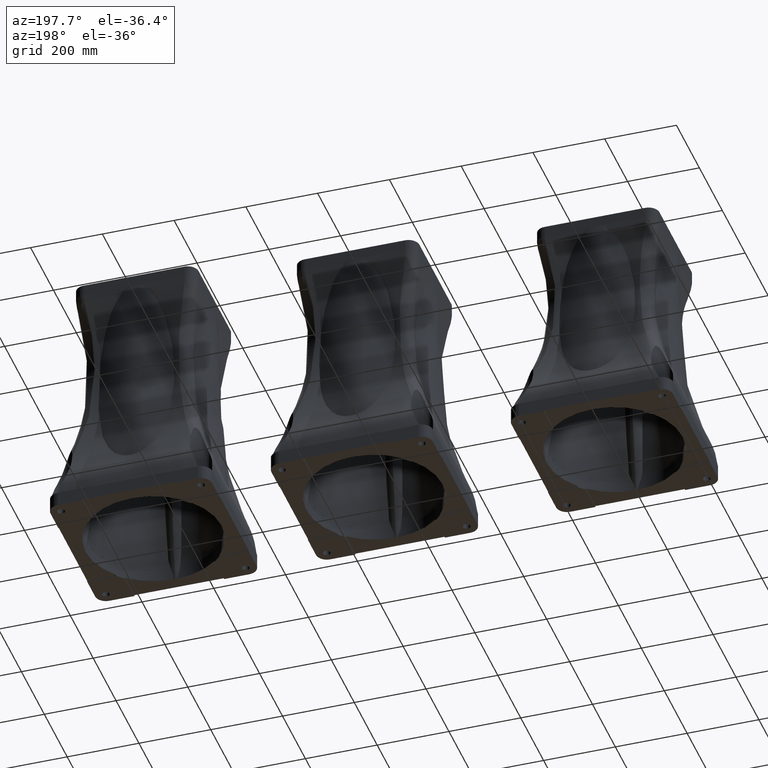
[diagram: clean part render]
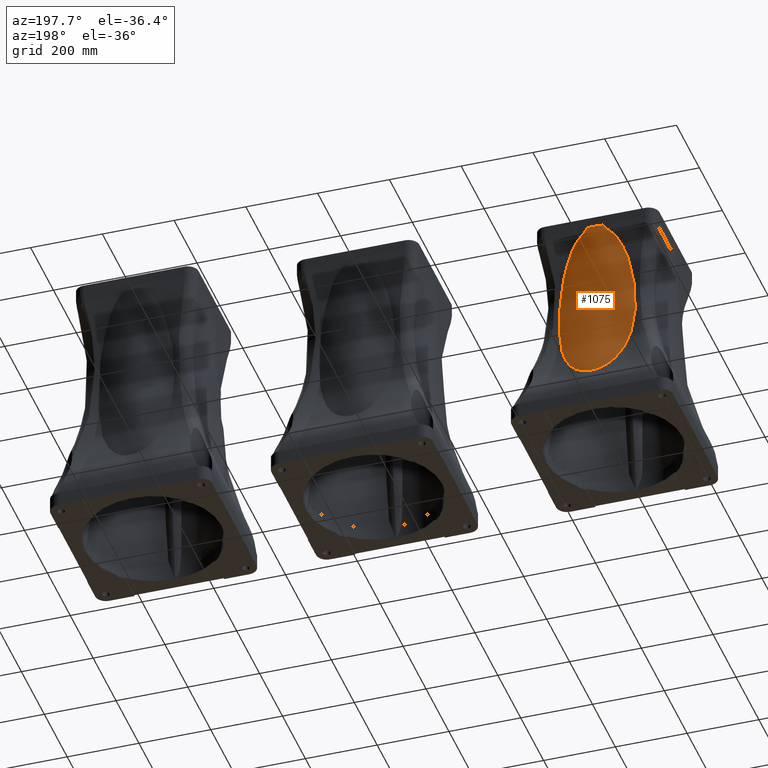
[diagram: same view with one face highlighted and labeled with its STEP entity id]
A machine part, auxiliary view. The second image highlights one B-rep face of the part: STEP entity #1075.
In plain terms, the highlighted face is a freeform B-spline surface patch.
Its self-contained STEP definition (entity closure, byte-faithful):
#1075=ADVANCED_FACE('',(#1801),#1802,.T.);
#1801=FACE_BOUND('',#3484,.T.);
#1802=(B_SPLINE_SURFACE(3,3,((#3486,#3487,#3488,#3489,#3490,#3491,#3492),(#3493,#3494,#3495,#3496,#3497,#3498,#3499),(#3500,#3501,#3502,#3503,#3504,#3505,#3506),(#3507,#3508,#3509,#3510,#3511,#3512,#3513),(#3514,#3515,#3516,#3517,#3518,#3519,#3520),(#3521,#3522,#3523,#3524,#3525,#3526,#3527),(#3528,#3529,#3530,#3531,#3532,#3533,#3534)),.UNSPECIFIED.,.T.,.T.,.F.)B_SPLINE_SURFACE_WITH_KNOTS((4,3,4),(4,3,4),(0.0,0.5,1.0),(0.0,0.5,1.0),.UNSPECIFIED.)RATIONAL_B_SPLINE_SURFACE(((1.0,0.333333333333334,0.333333333333334,1.0,0.333333333333334,0.333333333333334,1.0),(0.333333333333334,0.111111111111111,0.111111111111111,0.333333333333334,0.111111111111111,0.111111111111111,0.333333333333334),(0.333333333333334,0.111111111111111,0.111111111111111,0.333333333333334,0.111111111111111,0.111111111111111,0.333333333333334),(1.0,0.333333333333334,0.333333333333334,1.0,0.333333333333334,0.333333333333334,1.0),(0.333333333333334,0.111111111111111,0.111111111111111,0.333333333333334,0.111111111111111,0.111111111111111,0.333333333333334),(0.333333333333334,0.111111111111111,0.111111111111111,0.333333333333334,0.111111111111111,0.111111111111111,0.333333333333334),(1.0,0.333333333333334,0.333333333333334,1.0,0.333333333333334,0.333333333333334,1.0)))BOUNDED_SURFACE()REPRESENTATION_ITEM('')GEOMETRIC_REPRESENTATION_ITEM()SURFACE());
#3484=EDGE_LOOP('',(#11021,#11022,#11023,#11024));
#3486=CARTESIAN_POINT('',(206.588000000003,534.444444444444,2897.75111972796));
#3487=CARTESIAN_POINT('',(-883.411999999996,534.44444444445,2897.75111972796));
#3488=CARTESIAN_POINT('',(-883.412000000003,-555.55555555555,2897.75111972796));
#3489=CARTESIAN_POINT('',(206.587999999997,-555.555555555557,2897.75111972796));
#3490=CARTESIAN_POINT('',(1296.588,-555.555555555564,2897.75111972796));
#3491=CARTESIAN_POINT('',(1296.588,534.444444444436,2897.75111972796));
#3492=CARTESIAN_POINT('',(206.588000000003,534.444444444444,2897.75111972796));
#3493=CARTESIAN_POINT('',(206.588000000004,-215.555555555556,2897.75111972796));
#3494=CARTESIAN_POINT('',(616.588000000003,-215.55555555555,2897.75111972796));
#3495=CARTESIAN_POINT('',(616.587999999996,194.44444444445,2897.75111972796));
#3496=CARTESIAN_POINT('',(206.587999999997,194.444444444443,2897.75111972796));
#3497=CARTESIAN_POINT('',(-203.412000000003,194.444444444437,2897.75111972796));
#3498=CARTESIAN_POINT('',(-203.411999999996,-215.555555555563,2897.75111972796));
#3499=CARTESIAN_POINT('',(206.588000000004,-215.555555555556,2897.75111972796));
#3500=CARTESIAN_POINT('',(206.588000000004,-215.555555555557,-171.84888027204));
#3501=CARTESIAN_POINT('',(616.588000000004,-215.55555555555,-171.84888027204));
#3502=CARTESIAN_POINT('',(616.587999999997,194.444444444451,-171.84888027204));
#3503=CARTESIAN_POINT('',(206.587999999997,194.444444444443,-171.84888027204));
#3504=CARTESIAN_POINT('',(-203.412000000003,194.444444444437,-171.84888027204));
#3505=CARTESIAN_POINT('',(-203.411999999997,-215.555555555564,-171.84888027204));
#3506=CARTESIAN_POINT('',(206.588000000004,-215.555555555557,-171.84888027204));
#3507=CARTESIAN_POINT('',(206.588000000003,534.444444444443,-171.84888027204));
#3508=CARTESIAN_POINT('',(-883.411999999996,534.44444444445,-171.84888027204));
#3509=CARTESIAN_POINT('',(-883.412000000002,-555.55555555555,-171.84888027204));
#3510=CARTESIAN_POINT('',(206.587999999997,-555.555555555557,-171.84888027204));
#3511=CARTESIAN_POINT('',(1296.588,-555.555555555562,-171.84888027204));
#3512=CARTESIAN_POINT('',(1296.588,534.444444444436,-171.84888027204));
#3513=CARTESIAN_POINT('',(206.588000000003,534.444444444443,-171.84888027204));
#3514=CARTESIAN_POINT('',(206.588000000003,1284.44444444444,-171.84888027204));
#3515=CARTESIAN_POINT('',(-2383.412,1284.44444444445,-171.848880272041));
#3516=CARTESIAN_POINT('',(-2383.41200000001,-1305.55555555555,-171.848880272041));
#3517=CARTESIAN_POINT('',(206.587999999997,-1305.55555555556,-171.84888027204));
#3518=CARTESIAN_POINT('',(2796.588,-1305.55555555556,-171.848880272041));
#3519=CARTESIAN_POINT('',(2796.588,1284.44444444444,-171.848880272041));
#3520=CARTESIAN_POINT('',(206.588000000003,1284.44444444444,-171.84888027204));
#3521=CARTESIAN_POINT('',(206.588000000003,1284.44444444444,2897.75111972796));
#3522=CARTESIAN_POINT('',(-2383.412,1284.44444444445,2897.75111972796));
#3523=CARTESIAN_POINT('',(-2383.41200000001,-1305.55555555555,2897.75111972796));
#3524=CARTESIAN_POINT('',(206.587999999997,-1305.55555555556,2897.75111972796));
#3525=CARTESIAN_POINT('',(2796.588,-1305.55555555556,2897.75111972796));
#3526=CARTESIAN_POINT('',(2796.588,1284.44444444444,2897.75111972796));
#3527=CARTESIAN_POINT('',(206.588000000003,1284.44444444444,2897.75111972796));
#3528=CARTESIAN_POINT('',(206.588000000003,534.444444444444,2897.75111972796));
#3529=CARTESIAN_POINT('',(-883.411999999996,534.44444444445,2897.75111972796));
#3530=CARTESIAN_POINT('',(-883.412000000003,-555.55555555555,2897.75111972796));
#3531=CARTESIAN_POINT('',(206.587999999997,-555.555555555557,2897.75111972796));
#3532=CARTESIAN_POINT('',(1296.588,-555.555555555564,2897.75111972796));
#3533=CARTESIAN_POINT('',(1296.588,534.444444444436,2897.75111972796));
#3534=CARTESIAN_POINT('',(206.588000000003,534.444444444444,2897.75111972796));
#11021=ORIENTED_EDGE('',*,*,#14734,.T.);
#11022=ORIENTED_EDGE('',*,*,#14706,.T.);
#11023=ORIENTED_EDGE('',*,*,#14735,.T.);
#11024=ORIENTED_EDGE('',*,*,#14679,.T.);
#14679=EDGE_CURVE('',#16124,#16122,#16125,.T.);
#14706=EDGE_CURVE('',#16173,#16171,#16174,.F.);
#14734=EDGE_CURVE('',#16122,#16173,#16218,.T.);
#14735=EDGE_CURVE('',#16171,#16124,#16219,.T.);
#16122=VERTEX_POINT('',#18622);
#16124=VERTEX_POINT('',#18625);
#16125=B_SPLINE_CURVE_WITH_KNOTS('',3,(#18626,#18627,#18628,#18629,#18630,#18631,#18632,#18633,#18634,#18635,#18636,#18637,#18638,#18639,#18640,#18641,#18642,#18643,#18644,#18645,#18646,#18647,#18648,#18649,#18650,#18651,#18652,#18653,#18654,#18655,#18656,#18657,#18658,#18659,#18660,#18661,#18662,#18663,#18664,#18665,#18666,#18667,#18668,#18669,#18670,#18671,#18672,#18673,#18674,#18675,#18676,#18677,#18678,#18679,#18680,#18681,#18682,#18683,#18684,#18685,#18686,#18687,#18688,#18689,#18690,#18691,#18692,#18693,#18694,#18695,#18696,#18697,#18698,#18699,#18700,#18701,#18702,#18703,#18704,#18705,#18706,#18707,#18708,#18709,#18710,#18711,#18712,#18713,#18714,#18715,#18716,#18717,#18718,#18719,#18720,#18721,#18722,#18723,#18724,#18725,#18726,#18727,#18728,#18729,#18730,#18731,#18732,#18733,#18734,#18735,#18736,#18737,#18738,#18739,#18740,#18741,#18742,#18743,#18744,#18745,#18746,#18747,#18748,#18749,#18750,#18751,#18752,#18753,#18754,#18755,#18756,#18757,#18758,#18759,#18760,#18761,#18762,#18763,#18764,#18765,#18766,#18767,#18768,#18769,#18770,#18771,#18772,#18773,#18774,#18775,#18776,#18777,#18778,#18779,#18780,#18781,#18782,#18783,#18784,#18785,#18786,#18787,#18788,#18789,#18790,#18791),.UNSPECIFIED.,.F.,.F.,(4,2,2,2,2,2,2,2,2,2,2,2,2,2,2,2,2,2,2,2,2,2,2,2,2,2,2,2,2,2,2,2,2,2,2,2,2,2,2,2,2,2,2,2,2,2,2,2,2,2,2,2,2,2,2,2,2,2,2,2,2,2,2,2,2,2,2,2,2,2,2,2,2,2,2,2,2,2,2,2,2,2,4),(6.20633538311818E-017,0.00854926845276586,0.0170985369055317,0.0341970738110628,0.0427463422638284,0.051295610716594,0.0683941476221258,0.0854926845276575,0.102591221433189,0.119689758338721,0.128239026791487,0.136788295244254,0.170985369055319,0.205182442866385,0.23937951667745,0.273576590488516,0.290675127394048,0.299224395846814,0.307773664299581,0.341970738110646,0.359069275016178,0.376167811921711,0.393266348827244,0.40181561728001,0.410364885732776,0.427463422638308,0.44456195954384,0.453111227996606,0.461660496449373,0.478759033354905,0.487308301807671,0.491582936034054,0.495857570260437,0.504406838713203,0.512956107165969,0.517230741392352,0.521505375618735,0.530054644071501,0.534329278297884,0.536466595411076,0.538603912524267,0.547153180977034,0.5557024494298,0.559977083656183,0.564251717882566,0.572800986335332,0.577075620561715,0.581350254788098,0.589899523240864,0.59844879169363,0.602723425920013,0.606998060146396,0.615547328599162,0.632645865504695,0.641195133957461,0.649744402410227,0.666842939315759,0.683941476221291,0.701040013126823,0.718138550032355,0.726687818485121,0.735237086937887,0.752335623843419,0.786532697654483,0.820729771465547,0.854926845276611,0.889123919087675,0.897673187540441,0.906222455993208,0.923320992898741,0.957518066709807,0.974616603615341,0.991715140520875,1.00026440897364,1.00881367742641,1.02591221433194,1.04301075123747,1.06010928814301,1.06438392236939,1.06865855659577,1.07720782504854,1.0857570935013,1.09430636195407),.UNSPECIFIED.);
#16171=VERTEX_POINT('',#19356);
#16173=VERTEX_POINT('',#19359);
#16174=(B_SPLINE_CURVE(3,(#19361,#19362,#19363,#19364),.UNSPECIFIED.,.F.,.F.)B_SPLINE_CURVE_WITH_KNOTS((4,4),(0.0,1.0),.UNSPECIFIED.)RATIONAL_B_SPLINE_CURVE((1.0,0.994068637313882,0.994068637313882,1.0))BOUNDED_CURVE()REPRESENTATION_ITEM('')GEOMETRIC_REPRESENTATION_ITEM()CURVE());
#16218=B_SPLINE_CURVE_WITH_KNOTS('',3,(#20052,#20053,#20054,#20055,#20056,#20057,#20058,#20059,#20060,#20061,#20062,#20063,#20064,#20065,#20066,#20067,#20068,#20069,#20070,#20071),.UNSPECIFIED.,.F.,.F.,(4,1,1,1,1,1,1,1,1,1,1,1,1,1,1,1,1,4),(0.0,0.0429818220915538,0.0847195026708421,0.125224400546673,0.164507610455796,0.202579983523043,0.239452149874355,0.367920478056045,0.482682509492386,0.616191415661282,0.732438408222884,0.800345469726704,0.863337257904741,0.892024629402336,0.919968289692701,0.947232608848035,0.973885810157777,1.0),.UNSPECIFIED.);
#16219=B_SPLINE_CURVE_WITH_KNOTS('',3,(#20072,#20073,#20074,#20075,#20076,#20077,#20078,#20079,#20080,#20081,#20082,#20083,#20084,#20085,#20086,#20087,#20088,#20089,#20090,#20091,#20092),.UNSPECIFIED.,.F.,.F.,(4,1,1,1,1,1,1,1,1,1,1,1,1,1,1,1,1,1,4),(0.0,0.0144041241370636,0.0289652926895865,0.0436962149701189,0.0586092344776729,0.0737163247896564,0.0890290886936295,0.104558760252654,0.120316209478861,0.136311949282336,0.199381709950381,0.2674588457108,0.383601131250196,0.51704231784574,0.631839716150683,0.760411357640925,0.835382870451642,0.915216376405911,1.0),.UNSPECIFIED.);
#18622=CARTESIAN_POINT('',(169.479957194506,157.350808080808,1206.31573923637));
#18625=CARTESIAN_POINT('',(243.696042805495,157.350808080808,1206.31573923637));
#18626=CARTESIAN_POINT('',(243.696042805495,157.350808080808,1206.31573923637));
#18627=CARTESIAN_POINT('',(245.88897870115,156.914134210466,1204.44693043892));
#18628=CARTESIAN_POINT('',(247.959181584762,156.463550361936,1202.48727823764));
#18629=CARTESIAN_POINT('',(251.903321471994,155.546482080589,1198.42138057012));
#18630=CARTESIAN_POINT('',(253.776964330058,155.079939266218,1196.31492260925));
#18631=CARTESIAN_POINT('',(259.152644517278,153.669172251853,1189.81054902533));
#18632=CARTESIAN_POINT('',(262.411919296539,152.714374964041,1185.22941446524));
#18633=CARTESIAN_POINT('',(266.938957779425,151.295891390239,1178.07845053554));
#18634=CARTESIAN_POINT('',(268.386878974175,150.825175188823,1175.64769317021));
#18635=CARTESIAN_POINT('',(271.174431780648,149.892251204559,1170.70169139189));
#18636=CARTESIAN_POINT('',(272.515805700709,149.429367457667,1168.18240527399));
#18637=CARTESIAN_POINT('',(276.361239811996,148.070699246593,1160.57706892435));
#18638=CARTESIAN_POINT('',(278.700160624863,147.20112869406,1155.42411987921));
#18639=CARTESIAN_POINT('',(283.028691501983,145.547331216477,1144.98573801965));
#18640=CARTESIAN_POINT('',(285.01759762152,144.763028658881,1139.70007131695));
#18641=CARTESIAN_POINT('',(288.709627854648,143.288719819033,1129.01707749248));
#18642=CARTESIAN_POINT('',(290.41241815055,142.598675341863,1123.61963976987));
#18643=CARTESIAN_POINT('',(293.576252740498,141.31973130108,1112.72745201538));
#18644=CARTESIAN_POINT('',(295.037121305662,140.730809937444,1107.23264398718));
#18645=CARTESIAN_POINT('',(297.070760795318,139.927470659935,1098.9250845519));
#18646=CARTESIAN_POINT('',(297.72227999456,139.673023261444,1096.14497901492));
#18647=CARTESIAN_POINT('',(298.975718031696,139.191417381744,1090.56392814095));
#18648=CARTESIAN_POINT('',(299.57681688545,138.964581542402,1087.76644695208));
#18649=CARTESIAN_POINT('',(302.455320951604,137.903422400136,1073.7808684001));
#18650=CARTESIAN_POINT('',(304.36381552433,137.285110453431,1062.56426160941));
#18651=CARTESIAN_POINT('',(307.549587521076,136.511441412235,1040.08752084229));
#18652=CARTESIAN_POINT('',(308.825534414118,136.356033831119,1028.82727841293));
#18653=CARTESIAN_POINT('',(310.818594648733,136.51190355174,1006.26918243392));
#18654=CARTESIAN_POINT('',(311.535249585348,136.82314459292,994.971291212176));
#18655=CARTESIAN_POINT('',(312.426997489877,137.919432805604,972.33941069915));
#18656=CARTESIAN_POINT('',(312.602119155999,138.704440588353,961.005423088347));
#18657=CARTESIAN_POINT('',(312.434296524458,140.245996769702,943.975541106083));
#18658=CARTESIAN_POINT('',(312.306211796939,140.820561256413,938.294065850871));
#18659=CARTESIAN_POINT('',(311.998882436762,141.77496496545,929.764040135868));
#18660=CARTESIAN_POINT('',(311.87709383509,142.108778049292,926.917492594618));
#18661=CARTESIAN_POINT('',(311.594412815069,142.805454954939,921.238216152116));
#18662=CARTESIAN_POINT('',(311.433494580149,143.168459998312,918.404042013509));
#18663=CARTESIAN_POINT('',(310.527982687417,145.056387925741,904.260845950307));
#18664=CARTESIAN_POINT('',(309.483491233531,146.800026012151,893.034440561498));
#18665=CARTESIAN_POINT('',(307.346437666428,149.757346359429,876.338455469989));
#18666=CARTESIAN_POINT('',(306.538488772279,150.800097573727,870.797142122127));
#18667=CARTESIAN_POINT('',(304.707983027013,152.998055290495,859.765612370453));
#18668=CARTESIAN_POINT('',(303.685512024229,154.153268273055,854.275384899294));
#18669=CARTESIAN_POINT('',(301.394705748677,156.574364976087,843.350161060362));
#18670=CARTESIAN_POINT('',(300.126516093644,157.840259004566,837.915145795418));
#18671=CARTESIAN_POINT('',(298.007918701981,159.820362056862,829.808282237356));
#18672=CARTESIAN_POINT('',(297.265041565812,160.494346221667,827.112148833736));
#18673=CARTESIAN_POINT('',(295.707653163503,161.862593084181,821.760608058009));
#18674=CARTESIAN_POINT('',(294.892454637134,162.557529137567,819.102369912263));
#18675=CARTESIAN_POINT('',(292.328586752031,164.672767446291,811.183143182426));
#18676=CARTESIAN_POINT('',(290.462323078524,166.123620287427,805.977408539984));
#18677=CARTESIAN_POINT('',(286.355581260538,169.093625546347,795.733501880164));
#18678=CARTESIAN_POINT('',(284.115600555348,170.612864355119,790.695157785607));
#18679=CARTESIAN_POINT('',(280.40977266122,172.929581972358,783.285282549205));
#18680=CARTESIAN_POINT('',(279.116600074942,173.708086189072,780.840018524644));
#18681=CARTESIAN_POINT('',(276.399231049975,175.274636450333,776.004049818199));
#18682=CARTESIAN_POINT('',(274.983687374974,176.057666386043,773.628839075251));
#18683=CARTESIAN_POINT('',(270.549218494465,178.398404163478,766.64290377157));
#18684=CARTESIAN_POINT('',(267.344481580544,179.948531217544,762.17018834626));
#18685=CARTESIAN_POINT('',(262.064416283989,182.219015518412,755.800363012286));
#18686=CARTESIAN_POINT('',(260.225115953797,182.966582548342,753.7339216997));
#18687=CARTESIAN_POINT('',(257.328400502051,184.067201975142,750.731410080706));
#18688=CARTESIAN_POINT('',(256.339812069428,184.430602917616,749.746800946644));
#18689=CARTESIAN_POINT('',(254.312616722328,185.149066173317,747.812573091309));
#18690=CARTESIAN_POINT('',(253.27986704254,185.502036318153,746.868587704236));
#18691=CARTESIAN_POINT('',(250.123744171737,186.539072674816,744.11167719694));
#18692=CARTESIAN_POINT('',(247.941589560499,187.201752921919,742.372511239217));
#18693=CARTESIAN_POINT('',(243.401628063874,188.456044023068,739.113894411704));
#18694=CARTESIAN_POINT('',(241.043937573605,189.047711860965,737.594301743474));
#18695=CARTESIAN_POINT('',(237.355494562026,189.868848445835,735.503045097296));
#18696=CARTESIAN_POINT('',(236.099820347765,190.13162225309,734.837002486226));
#18697=CARTESIAN_POINT('',(233.536544659598,190.631611506877,733.574651560922));
#18698=CARTESIAN_POINT('',(232.240178707459,190.866640498755,732.983851966362));
#18699=CARTESIAN_POINT('',(228.305477569407,191.524337437059,731.336048842113));
#18700=CARTESIAN_POINT('',(225.621674706371,191.899728552229,730.40325935704));
#18701=CARTESIAN_POINT('',(221.497193627493,192.356529582291,729.272489259177));
#18702=CARTESIAN_POINT('',(220.10587256581,192.49105655884,728.940389618568));
#18703=CARTESIAN_POINT('',(217.992835533914,192.664487615122,728.512912971712));
#18704=CARTESIAN_POINT('',(217.284144567473,192.71756906856,728.382207176107));
#18705=CARTESIAN_POINT('',(215.857816833745,192.813951358763,728.145042620419));
#18706=CARTESIAN_POINT('',(215.13896292089,192.857298388914,728.038470488817));
#18707=CARTESIAN_POINT('',(211.552595273118,193.047258119834,727.571683745336));
#18708=CARTESIAN_POINT('',(208.689091605627,193.11524095438,727.405254801671));
#18709=CARTESIAN_POINT('',(202.973017731791,193.086036592596,727.476863004577));
#18710=CARTESIAN_POINT('',(200.120447995231,192.988844373136,727.714918372708));
#18711=CARTESIAN_POINT('',(195.849825346273,192.71968236437,728.376929838113));
#18712=CARTESIAN_POINT('',(194.422380433386,192.608796068881,728.649963180199));
#18713=CARTESIAN_POINT('',(191.612250649618,192.350032086997,729.288633800669));
#18714=CARTESIAN_POINT('',(190.226128481464,192.202102658671,729.654397325129));
#18715=CARTESIAN_POINT('',(186.121476720035,191.706417475028,730.883620676762));
#18716=CARTESIAN_POINT('',(183.456519068528,191.30687653304,731.878652023466));
#18717=CARTESIAN_POINT('',(179.557015347345,190.6163899692,733.613117781511));
#18718=CARTESIAN_POINT('',(178.272590209744,190.370805605351,734.2321865327));
#18719=CARTESIAN_POINT('',(175.739245517487,189.851759229583,735.546555114791));
#18720=CARTESIAN_POINT('',(174.500569133221,189.580440212175,736.236431725238));
#18721=CARTESIAN_POINT('',(170.861605395828,188.735093557348,738.396466902652));
#18722=CARTESIAN_POINT('',(168.538099248834,188.129812359082,739.956705140354));
#18723=CARTESIAN_POINT('',(164.067972678537,186.852929600013,743.286869077134));
#18724=CARTESIAN_POINT('',(161.921472851597,186.181271756046,745.056933517355));
#18725=CARTESIAN_POINT('',(158.819416770299,185.133967627633,747.853191799955));
#18726=CARTESIAN_POINT('',(157.805063518781,184.778205942244,748.808861846834));
#18727=CARTESIAN_POINT('',(155.813665998018,184.054785554809,750.765226680098));
#18728=CARTESIAN_POINT('',(154.835448214875,183.686625512564,751.767320594646));
#18729=CARTESIAN_POINT('',(151.976650687087,182.575266787043,754.813489286412));
#18730=CARTESIAN_POINT('',(150.164080302575,181.822636638056,756.904320539124));
#18731=CARTESIAN_POINT('',(144.96651984895,179.542500324601,763.334085097291));
#18732=CARTESIAN_POINT('',(141.819765836712,177.993302631485,767.829163149609));
#18733=CARTESIAN_POINT('',(137.472032210306,175.662388425861,774.824940018822));
#18734=CARTESIAN_POINT('',(136.08543349118,174.884065138156,777.199400558739));
#18735=CARTESIAN_POINT('',(133.425304543278,173.329274930288,782.026548953571));
#18736=CARTESIAN_POINT('',(132.15107946789,172.552346266679,784.480716690093));
#18737=CARTESIAN_POINT('',(128.487628535719,170.232989173467,791.943197602337));
#18738=CARTESIAN_POINT('',(126.282120269155,168.71875683451,796.997497022624));
#18739=CARTESIAN_POINT('',(122.248254777516,165.76850942004,807.239355193487));
#18740=CARTESIAN_POINT('',(120.42048806976,164.332416017124,812.427071473314));
#18741=CARTESIAN_POINT('',(117.07839806164,161.548277722115,822.919119972178));
#18742=CARTESIAN_POINT('',(115.564367535594,160.200192176398,828.223529829905));
#18743=CARTESIAN_POINT('',(112.804229825758,157.599482817633,838.937172474093));
#18744=CARTESIAN_POINT('',(111.558282002771,156.346835563844,844.346447186154));
#18745=CARTESIAN_POINT('',(109.865104094226,154.543879979297,852.532528412418));
#18746=CARTESIAN_POINT('',(109.330082090419,153.95555408258,855.273271863681));
#18747=CARTESIAN_POINT('',(108.315372699017,152.804864153813,860.777998138861));
#18748=CARTESIAN_POINT('',(107.835274353836,152.241994394176,863.544557334706));
#18749=CARTESIAN_POINT('',(106.47659585403,150.596931926667,871.859089039547));
#18750=CARTESIAN_POINT('',(105.6809015042,149.56030554433,877.410975479835));
#18751=CARTESIAN_POINT('',(103.583532051824,146.629086961938,894.092022023385));
#18752=CARTESIAN_POINT('',(102.569158247879,144.913049604693,905.246496317882));
#18753=CARTESIAN_POINT('',(101.169544038575,141.951117511595,927.618801760424));
#18754=CARTESIAN_POINT('',(100.785208477048,140.705214560825,938.836655509467));
#18755=CARTESIAN_POINT('',(100.578062569865,138.680915596002,961.33370581986));
#18756=CARTESIAN_POINT('',(100.755523937689,137.902511684683,972.612908624321));
#18757=CARTESIAN_POINT('',(101.655392830698,136.814260450174,995.232332958433));
#18758=CARTESIAN_POINT('',(102.3776308704,136.504400800372,1006.57254886652));
#18759=CARTESIAN_POINT('',(103.641861406481,136.413062398573,1020.78680918289));
#18760=CARTESIAN_POINT('',(103.91292033318,136.409635142456,1023.63128481118));
#18761=CARTESIAN_POINT('',(104.490639646406,136.432323475025,1029.30699987388));
#18762=CARTESIAN_POINT('',(104.797480824075,136.458419168412,1032.14036298869));
#18763=CARTESIAN_POINT('',(105.773163332804,136.580555833951,1040.62675713694));
#18764=CARTESIAN_POINT('',(106.49703529986,136.720443882162,1046.26611833441));
#18765=CARTESIAN_POINT('',(108.902959011687,137.312396689658,1063.12694027618));
#18766=CARTESIAN_POINT('',(110.816447594416,137.936801914735,1074.29169962501));
#18767=CARTESIAN_POINT('',(114.250399495482,139.20566791362,1090.90644947792));
#18768=CARTESIAN_POINT('',(115.489636496691,139.683994401818,1096.42251059567));
#18769=CARTESIAN_POINT('',(118.184210372605,140.749026803104,1107.40512316443));
#18770=CARTESIAN_POINT('',(119.639410849563,141.335742667773,1112.87170074314));
#18771=CARTESIAN_POINT('',(122.012267268619,142.294976514304,1121.02908042151));
#18772=CARTESIAN_POINT('',(122.834989750324,142.627909811314,1123.74110763931));
#18773=CARTESIAN_POINT('',(124.550086471443,143.319722063577,1129.14979185817));
#18774=CARTESIAN_POINT('',(125.443595663781,143.679057101591,1131.84967298847));
#18775=CARTESIAN_POINT('',(128.229752311604,144.791288332485,1139.89608359845));
#18776=CARTESIAN_POINT('',(130.226359600172,145.578133220906,1145.18814743879));
#18777=CARTESIAN_POINT('',(134.555176415407,147.230819578124,1155.60322908677));
#18778=CARTESIAN_POINT('',(136.886851300047,148.096738476219,1160.72648217201));
#18779=CARTESIAN_POINT('',(141.970646103279,149.891796721203,1170.76718990374));
#18780=CARTESIAN_POINT('',(144.721526766395,150.821105359319,1175.68519160861));
#18781=CARTESIAN_POINT('',(148.508726909879,152.007671785911,1181.66666318258));
#18782=CARTESIAN_POINT('',(149.284307732884,152.246348364105,1182.8552438552));
#18783=CARTESIAN_POINT('',(150.865605792291,152.723212984269,1185.2024616131));
#18784=CARTESIAN_POINT('',(151.67217055731,152.961673124489,1186.36248873405));
#18785=CARTESIAN_POINT('',(154.142889805699,153.676054185256,1189.79926389331));
#18786=CARTESIAN_POINT('',(155.857864656916,154.151025893784,1192.03286935554));
#18787=CARTESIAN_POINT('',(159.44509563847,155.09160255749,1196.36795527679));
#18788=CARTESIAN_POINT('',(161.317229373903,155.557235110333,1198.46953414874));
#18789=CARTESIAN_POINT('',(165.248198899127,156.470444748666,1202.51735658122));
#18790=CARTESIAN_POINT('',(167.306802027614,156.918073097783,1204.4637874752));
#18791=CARTESIAN_POINT('',(169.479957194507,157.350808080808,1206.31573923637));
#19356=CARTESIAN_POINT('',(229.41768285467,159.444444444444,1224.62735349581));
#19359=CARTESIAN_POINT('',(183.75831714533,159.444444444444,1224.62735349581));
#19361=CARTESIAN_POINT('',(229.41768285467,159.444444444444,1224.62735349581));
#19362=CARTESIAN_POINT('',(214.243300649514,161.482246404793,1224.62735349581));
#19363=CARTESIAN_POINT('',(198.932699350487,161.482246404793,1224.62735349581));
#19364=CARTESIAN_POINT('',(183.75831714533,159.444444444444,1224.62735349581));
#20052=CARTESIAN_POINT('',(169.479957194506,157.350808080808,1206.31573923636));
#20053=CARTESIAN_POINT('',(169.735543211526,157.401336013489,1206.53443035163));
#20054=CARTESIAN_POINT('',(170.239317114026,157.500929309433,1206.9654824016));
#20055=CARTESIAN_POINT('',(170.978709613179,157.642504673168,1207.60997732714));
#20056=CARTESIAN_POINT('',(171.692194733888,157.776005684203,1208.24089909035));
#20057=CARTESIAN_POINT('',(172.379611630796,157.901422389299,1208.85873975579));
#20058=CARTESIAN_POINT('',(173.041233808108,158.019224071435,1209.46337201296));
#20059=CARTESIAN_POINT('',(174.210593974654,158.222420965327,1210.55088049011));
#20060=CARTESIAN_POINT('',(175.791639607732,158.482060978188,1212.08365715455));
#20061=CARTESIAN_POINT('',(177.837022445076,158.789525070593,1214.23226551553));
#20062=CARTESIAN_POINT('',(179.700463921818,159.042385780148,1216.42300742351));
#20063=CARTESIAN_POINT('',(181.168230533171,159.218727193884,1218.46147703864));
#20064=CARTESIAN_POINT('',(182.164938145832,159.325152752951,1220.14289482324));
#20065=CARTESIAN_POINT('',(182.722014931227,159.377936179192,1221.27704142228));
#20066=CARTESIAN_POINT('',(183.080371078077,159.407797243217,1222.15305328305));
#20067=CARTESIAN_POINT('',(183.303512877945,159.424318490757,1222.7784442623));
#20068=CARTESIAN_POINT('',(183.491057612681,159.435898210243,1223.39862914511));
#20069=CARTESIAN_POINT('',(183.646255806823,159.443099637162,1224.01309146564));
#20070=CARTESIAN_POINT('',(183.721218610655,159.44399923845,1224.42399860527));
#20071=CARTESIAN_POINT('',(183.758317145331,159.444444444444,1224.62735349581));
#20072=CARTESIAN_POINT('',(229.41768285467,159.444444444444,1224.62735349581));
#20073=CARTESIAN_POINT('',(229.437345917328,159.444308995676,1224.51506150052));
#20074=CARTESIAN_POINT('',(229.476886423899,159.444036621376,1224.28925321956));
#20075=CARTESIAN_POINT('',(229.549297423356,159.441846976225,1223.95104220438));
#20076=CARTESIAN_POINT('',(229.631638184157,159.438340182568,1223.61101856917));
#20077=CARTESIAN_POINT('',(229.724870057353,159.433368288272,1223.26934055586));
#20078=CARTESIAN_POINT('',(229.828747633083,159.426947749299,1222.92596536801));
#20079=CARTESIAN_POINT('',(229.943356619914,159.419047253983,1222.5809045615));
#20080=CARTESIAN_POINT('',(230.068694303551,159.40964558092,1222.23415623526));
#20081=CARTESIAN_POINT('',(230.204783876236,159.398715824515,1221.88571646993));
#20082=CARTESIAN_POINT('',(230.494918968207,159.374047995783,1221.19403783527));
#20083=CARTESIAN_POINT('',(231.008142199849,159.325454720643,1220.14804434161));
#20084=CARTESIAN_POINT('',(232.005122779083,159.219030866434,1218.46546362314));
#20085=CARTESIAN_POINT('',(233.472586481746,159.042756871508,1216.42676864606));
#20086=CARTESIAN_POINT('',(235.335068140119,158.790088355819,1214.23659229263));
#20087=CARTESIAN_POINT('',(237.380666233477,158.482626864329,1212.08737365996));
#20088=CARTESIAN_POINT('',(239.177368786914,158.187705110601,1210.34513963812));
#20089=CARTESIAN_POINT('',(240.81344959615,157.899691096281,1208.83852479251));
#20090=CARTESIAN_POINT('',(242.215135066463,157.641513372547,1207.58780930504));
#20091=CARTESIAN_POINT('',(243.192609184138,157.449633155396,1206.7481786277));
#20092=CARTESIAN_POINT('',(243.696042805494,157.350808080808,1206.31573923636));